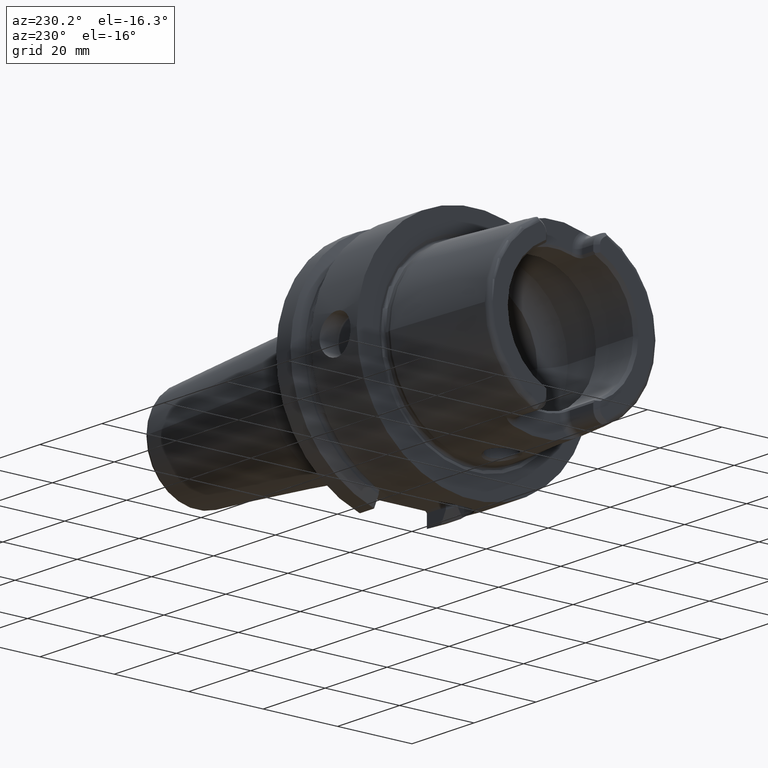
[diagram: clean part render]
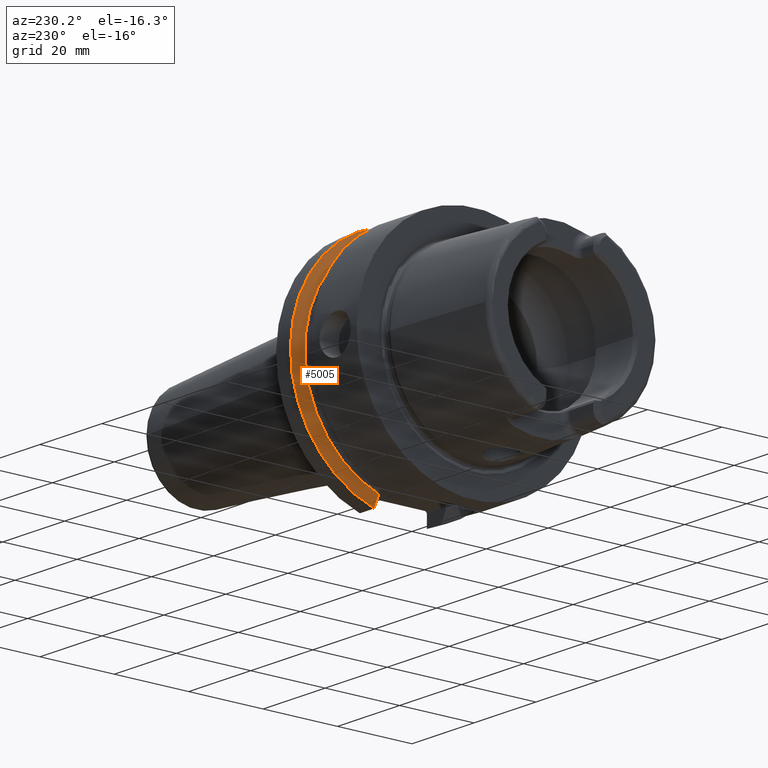
[diagram: same view with one face highlighted and labeled with its STEP entity id]
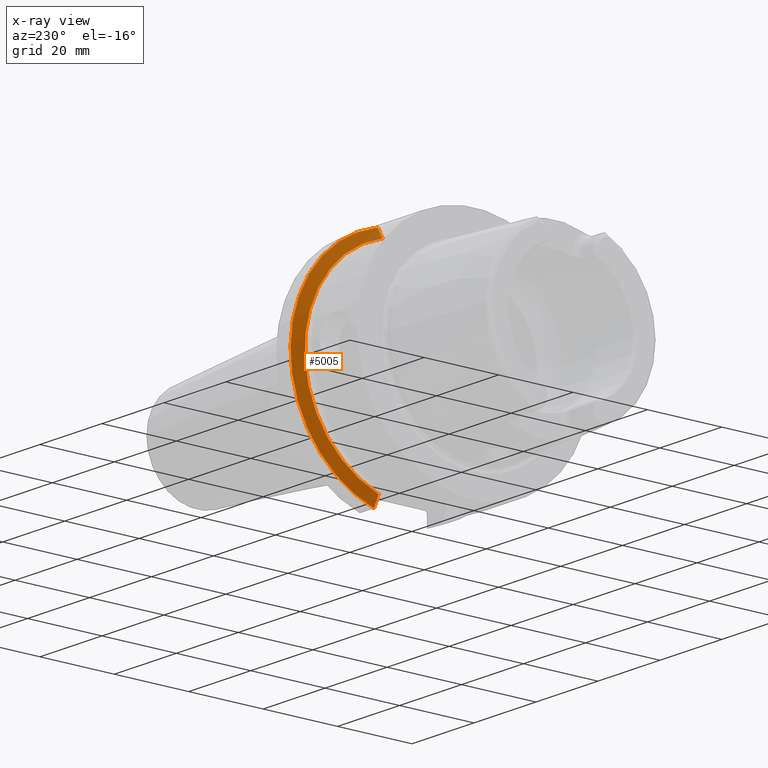
[diagram: x-ray of the same camera — body ghosted, the highlighted face saturated]
A machine part, auxiliary view. The second image highlights one B-rep face of the part: STEP entity #5005.
The next image is the same camera in x-ray: the body ghosted, the highlighted face saturated — about 3% of this face is hidden behind the body in this view.
In plain terms, the highlighted conical surface has half-angle 60 deg.
Its self-contained STEP definition (entity closure, byte-faithful):
#1773=CARTESIAN_POINT('',(2.137749907476E1,9.0175E0,-3.018169467989E1));
#1774=CARTESIAN_POINT('',(2.120260671566E1,9.0175E0,-2.986554088755E1));
#1775=CARTESIAN_POINT('',(2.085812292499E1,9.0175E0,-2.924200119110E1));
#1776=CARTESIAN_POINT('',(2.035750942268E1,9.0175E0,-2.833337204728E1));
#1777=CARTESIAN_POINT('',(2.003409260855E1,9.0175E0,-2.774465116011E1));
#1778=CARTESIAN_POINT('',(1.9875E1,9.0175E0,-2.745461174016E1));
#1780=CARTESIAN_POINT('',(2.137749907476E1,0.E0,0.E0));
#1781=DIRECTION('',(1.E0,0.E0,0.E0));
#1782=DIRECTION('',(0.E0,2.862698412698E-1,-9.581490374568E-1));
#1783=AXIS2_PLACEMENT_3D('',#1780,#1781,#1782);
#1785=CARTESIAN_POINT('',(1.9875E1,8.0175E0,2.776311772483E1));
#1786=CARTESIAN_POINT('',(2.003456921596E1,8.0175E0,2.805079344433E1));
#1787=CARTESIAN_POINT('',(2.035862308375E1,8.0175E0,2.863431787984E1));
#1788=CARTESIAN_POINT('',(2.085926872163E1,8.0175E0,2.953380309393E1));
#1789=CARTESIAN_POINT('',(2.120309833211E1,8.0175E0,3.015023700722E1));
#1790=CARTESIAN_POINT('',(2.137749907476E1,8.0175E0,3.046259499370E1));
#1792=CARTESIAN_POINT('',(1.9875E1,0.E0,0.E0));
#1793=DIRECTION('',(-1.E0,0.E0,0.E0));
#1794=DIRECTION('',(0.E0,2.774452312278E-1,9.607414551631E-1));
#1795=AXIS2_PLACEMENT_3D('',#1792,#1793,#1794);
#2987=CARTESIAN_POINT('',(1.9875E1,8.0175E0,2.776311772483E1));
#2988=VERTEX_POINT('',#2987);
#2990=VERTEX_POINT('',#1790);
#3011=CARTESIAN_POINT('',(1.9875E1,9.0175E0,-2.745461174016E1));
#3013=VERTEX_POINT('',#3011);
#3019=VERTEX_POINT('',#1773);
#4994=CARTESIAN_POINT('',(2.062624953738E1,0.E0,0.E0));
#4995=DIRECTION('',(1.E0,0.E0,0.E0));
#4996=DIRECTION('',(0.E0,-1.E0,0.E0));
#4997=AXIS2_PLACEMENT_3D('',#4994,#4995,#4996);
#4998=CONICAL_SURFACE('',#4997,3.019879763210E1,6.E1);
#4999=ORIENTED_EDGE('',*,*,#4491,.F.);
#5000=ORIENTED_EDGE('',*,*,#4784,.T.);
#5001=ORIENTED_EDGE('',*,*,#4754,.F.);
#5002=ORIENTED_EDGE('',*,*,#4960,.T.);
#5003=EDGE_LOOP('',(#4999,#5000,#5001,#5002));
#5004=FACE_OUTER_BOUND('',#5003,.F.);
#5005=ADVANCED_FACE('',(#5004),#4998,.T.);
#1779=B_SPLINE_CURVE_WITH_KNOTS('',3,(#1773,#1774,#1775,#1776,#1777,#1778),
.UNSPECIFIED.,.F.,.F.,(4,1,1,4),(0.E0,3.333333333333E-1,6.666666666667E-1,1.E0),
.UNSPECIFIED.);
#1784=CIRCLE('',#1783,3.15E1);
#1791=B_SPLINE_CURVE_WITH_KNOTS('',3,(#1785,#1786,#1787,#1788,#1789,#1790),
.UNSPECIFIED.,.F.,.F.,(4,1,1,4),(0.E0,3.333333333333E-1,6.666666666667E-1,1.E0),
.UNSPECIFIED.);
#1796=CIRCLE('',#1795,2.889759526419E1);
#4491=EDGE_CURVE('',#3019,#3013,#1779,.T.);
#4754=EDGE_CURVE('',#2988,#2990,#1791,.T.);
#4784=EDGE_CURVE('',#3019,#2990,#1784,.T.);
#4960=EDGE_CURVE('',#2988,#3013,#1796,.T.);